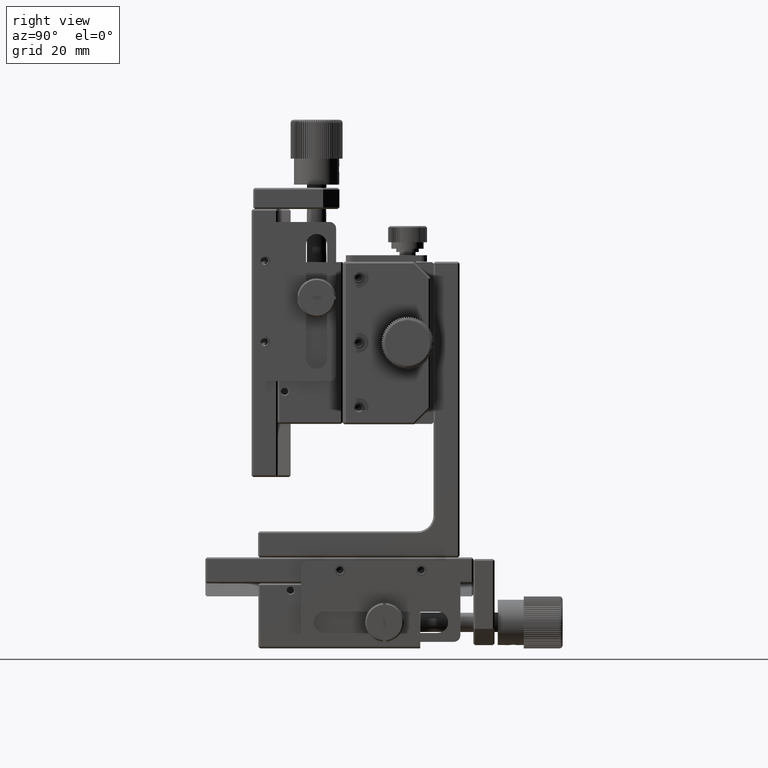
[diagram: clean part render]
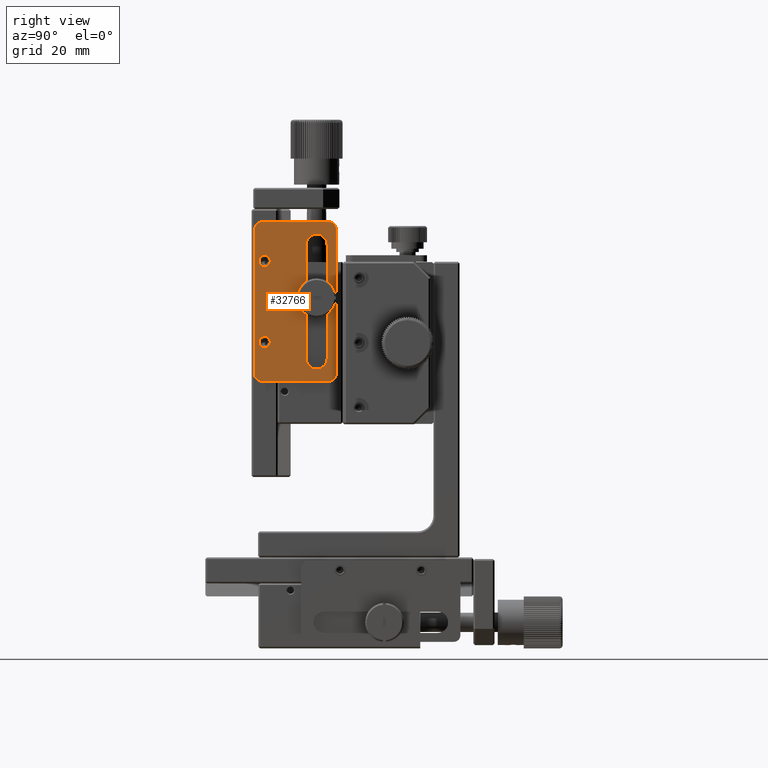
[diagram: same view with one face highlighted and labeled with its STEP entity id]
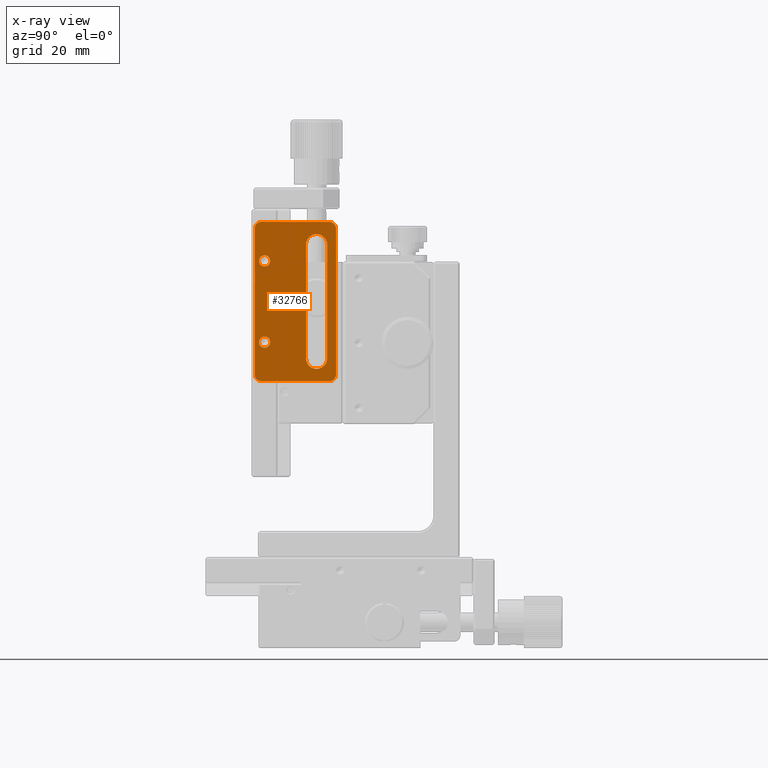
[diagram: x-ray of the same camera — body ghosted, the highlighted face saturated]
A machine part, right view. The second image highlights one B-rep face of the part: STEP entity #32766.
The next image is the same camera in x-ray: the body ghosted, the highlighted face saturated — about 0% of this face is hidden behind the body in this view.
In plain terms, the highlighted planar face has unit normal (1, 0, 0).
Its self-contained STEP definition (entity closure, byte-faithful):
#516 = AXIS2_PLACEMENT_3D ( 'NONE', #23458, #43034, #12449 ) ;
#561 = DIRECTION ( 'NONE',  ( 0.000000000000000000, 0.000000000000000000, 1.000000000000000000 ) ) ;
#580 = PLANE ( 'NONE',  #19412 ) ;
#676 = VERTEX_POINT ( 'NONE', #67835 ) ;
#733 = ORIENTED_EDGE ( 'NONE', *, *, #15411, .T. ) ;
#1365 = CARTESIAN_POINT ( 'NONE',  ( 27.00000000000000000, 24.00000000000000000, 76.50000000000000000 ) ) ;
#3001 = EDGE_CURVE ( 'NONE', #72055, #47628, #47991, .T. ) ;
#3218 = VERTEX_POINT ( 'NONE', #47504 ) ;
#3309 = CARTESIAN_POINT ( 'NONE',  ( 27.00000000000000000, 4.000000000000000000, 68.25000000000000000 ) ) ;
#3929 = VECTOR ( 'NONE', #19475, 1000.000000000000000 ) ;
#4379 = CIRCLE ( 'NONE', #516, 1.750000000000001554 ) ;
#5336 = DIRECTION ( 'NONE',  ( -1.000000000000000000, 0.000000000000000000, 0.000000000000000000 ) ) ;
#5987 = VERTEX_POINT ( 'NONE', #62053 ) ;
#6050 = VERTEX_POINT ( 'NONE', #28450 ) ;
#6694 = VERTEX_POINT ( 'NONE', #27029 ) ;
#6852 = CARTESIAN_POINT ( 'NONE',  ( 27.00000000000000000, 25.99999999999999645, 31.50000000000000000 ) ) ;
#7054 = CARTESIAN_POINT ( 'NONE',  ( 27.00000000000000000, 3.000000000000010658, 76.50000000000000000 ) ) ;
#7871 = FACE_BOUND ( 'NONE', #59444, .T. ) ;
#8070 = AXIS2_PLACEMENT_3D ( 'NONE', #61189, #5336, #73011 ) ;
#8596 = CARTESIAN_POINT ( 'NONE',  ( 27.00000000000000000, 20.00000000000000000, 36.50000000000000000 ) ) ;
#9015 = VERTEX_POINT ( 'NONE', #78975 ) ;
#10330 = CARTESIAN_POINT ( 'NONE',  ( 27.00000000000000000, 2.999999999999989786, 31.50000000000000000 ) ) ;
#10633 = VERTEX_POINT ( 'NONE', #3309 ) ;
#10892 = DIRECTION ( 'NONE',  ( -0.000000000000000000, 1.000000000000000000, 0.000000000000000000 ) ) ;
#11232 = DIRECTION ( 'NONE',  ( 0.000000000000000000, 0.000000000000000000, 1.000000000000000000 ) ) ;
#12449 = DIRECTION ( 'NONE',  ( 0.000000000000000000, 0.000000000000000000, 1.000000000000000000 ) ) ;
#13714 = VERTEX_POINT ( 'NONE', #18109 ) ;
#14222 = ORIENTED_EDGE ( 'NONE', *, *, #76386, .T. ) ;
#14744 = DIRECTION ( 'NONE',  ( -1.000000000000000000, 0.000000000000000000, 0.000000000000000000 ) ) ;
#14877 = LINE ( 'NONE', #77220, #24956 ) ;
#15411 = EDGE_CURVE ( 'NONE', #6694, #13714, #24751, .T. ) ;
#15877 = CIRCLE ( 'NONE', #75746, 2.000000000000001776 ) ;
#17668 = DIRECTION ( 'NONE',  ( -1.000000000000000000, 0.000000000000000000, 0.000000000000000000 ) ) ;
#18109 = CARTESIAN_POINT ( 'NONE',  ( 27.00000000000000000, 16.75000000000000000, 36.50000000000000000 ) ) ;
#18989 = EDGE_LOOP ( 'NONE', ( #31340 ) ) ;
#19152 = EDGE_CURVE ( 'NONE', #9015, #42327, #65836, .T. ) ;
#19412 = AXIS2_PLACEMENT_3D ( 'NONE', #1365, #32347, #69029 ) ;
#19475 = DIRECTION ( 'NONE',  ( -0.000000000000000000, -0.000000000000000000, 1.000000000000000000 ) ) ;
#19593 = LINE ( 'NONE', #44476, #58180 ) ;
#19712 = FACE_OUTER_BOUND ( 'NONE', #50510, .T. ) ;
#19799 = CARTESIAN_POINT ( 'NONE',  ( 27.00000000000000000, 1.000000000000000000, 76.50000000000000000 ) ) ;
#21617 = ORIENTED_EDGE ( 'NONE', *, *, #3001, .F. ) ;
#23458 = CARTESIAN_POINT ( 'NONE',  ( 27.00000000000000000, 4.000000000000000000, 41.50000000000000000 ) ) ;
#24373 = CARTESIAN_POINT ( 'NONE',  ( 27.00000000000000000, 16.75000000000000000, 76.50000000000000000 ) ) ;
#24751 = CIRCLE ( 'NONE', #56020, 3.250000000000002665 ) ;
#24956 = VECTOR ( 'NONE', #75602, 1000.000000000000000 ) ;
#25016 = CIRCLE ( 'NONE', #73117, 2.000000000000001776 ) ;
#25026 = FACE_BOUND ( 'NONE', #35868, .T. ) ;
#25968 = EDGE_CURVE ( 'NONE', #3218, #6694, #19593, .T. ) ;
#27029 = CARTESIAN_POINT ( 'NONE',  ( 27.00000000000000000, 23.25000000000000000, 36.50000000000000000 ) ) ;
#27102 = LINE ( 'NONE', #40144, #32994 ) ;
#28450 = CARTESIAN_POINT ( 'NONE',  ( 27.00000000000000000, 16.75000000000000000, 71.50000000000001421 ) ) ;
#28649 = ORIENTED_EDGE ( 'NONE', *, *, #79881, .T. ) ;
#29239 = LINE ( 'NONE', #71608, #68047 ) ;
#30844 = DIRECTION ( 'NONE',  ( 0.000000000000000000, 0.000000000000000000, 1.000000000000000000 ) ) ;
#31259 = CARTESIAN_POINT ( 'NONE',  ( 27.00000000000000000, 24.00000000000000000, 31.50000000000000000 ) ) ;
#31340 = ORIENTED_EDGE ( 'NONE', *, *, #40391, .T. ) ;
#32331 = CARTESIAN_POINT ( 'NONE',  ( 27.00000000000000000, 24.00000000000000000, 29.50000000000000355 ) ) ;
#32347 = DIRECTION ( 'NONE',  ( 1.000000000000000000, 0.000000000000000000, 0.000000000000000000 ) ) ;
#32367 = VERTEX_POINT ( 'NONE', #19799 ) ;
#32766 = ADVANCED_FACE ( 'NONE', ( #19712, #7871, #44597, #25026 ), #580, .T. ) ;
#32994 = VECTOR ( 'NONE', #47455, 1000.000000000000000 ) ;
#33049 = DIRECTION ( 'NONE',  ( 0.000000000000000000, 0.000000000000000000, -1.000000000000000000 ) ) ;
#35011 = DIRECTION ( 'NONE',  ( 0.000000000000000000, 0.000000000000000000, 1.000000000000000000 ) ) ;
#35416 = DIRECTION ( 'NONE',  ( -1.000000000000000000, 0.000000000000000000, 0.000000000000000000 ) ) ;
#35619 = DIRECTION ( 'NONE',  ( 0.000000000000000000, 0.000000000000000000, 1.000000000000000000 ) ) ;
#35868 = EDGE_LOOP ( 'NONE', ( #69698, #49691, #37282, #733 ) ) ;
#36709 = ORIENTED_EDGE ( 'NONE', *, *, #19152, .T. ) ;
#37165 = AXIS2_PLACEMENT_3D ( 'NONE', #10330, #17668, #35619 ) ;
#37282 = ORIENTED_EDGE ( 'NONE', *, *, #25968, .T. ) ;
#37317 = VERTEX_POINT ( 'NONE', #62168 ) ;
#37462 = EDGE_CURVE ( 'NONE', #676, #47628, #29239, .T. ) ;
#37527 = VECTOR ( 'NONE', #47509, 1000.000000000000000 ) ;
#40144 = CARTESIAN_POINT ( 'NONE',  ( 27.00000000000000000, 26.00000000000000355, 76.50000000000000000 ) ) ;
#40148 = EDGE_CURVE ( 'NONE', #32367, #42327, #25016, .T. ) ;
#40391 = EDGE_CURVE ( 'NONE', #10633, #10633, #58829, .T. ) ;
#40978 = ORIENTED_EDGE ( 'NONE', *, *, #37462, .T. ) ;
#42221 = CARTESIAN_POINT ( 'NONE',  ( 27.00000000000000000, 24.00000000000000000, 76.50000000000000000 ) ) ;
#42327 = VERTEX_POINT ( 'NONE', #46760 ) ;
#43034 = DIRECTION ( 'NONE',  ( -1.000000000000000000, 0.000000000000000000, 0.000000000000000000 ) ) ;
#43759 = DIRECTION ( 'NONE',  ( -1.000000000000000000, 0.000000000000000000, 0.000000000000000000 ) ) ;
#44476 = CARTESIAN_POINT ( 'NONE',  ( 27.00000000000000000, 23.25000000000000000, 76.50000000000000000 ) ) ;
#44521 = EDGE_CURVE ( 'NONE', #6050, #3218, #61828, .T. ) ;
#44597 = FACE_BOUND ( 'NONE', #18989, .T. ) ;
#46760 = CARTESIAN_POINT ( 'NONE',  ( 27.00000000000000000, 3.000000000000010658, 78.50000000000000000 ) ) ;
#47455 = DIRECTION ( 'NONE',  ( -0.000000000000000000, -0.000000000000000000, 1.000000000000000000 ) ) ;
#47504 = CARTESIAN_POINT ( 'NONE',  ( 27.00000000000000000, 23.25000000000000000, 71.50000000000001421 ) ) ;
#47509 = DIRECTION ( 'NONE',  ( -0.000000000000000000, -1.000000000000000000, -0.000000000000000000 ) ) ;
#47628 = VERTEX_POINT ( 'NONE', #32331 ) ;
#47991 = CIRCLE ( 'NONE', #64928, 1.999999999999988010 ) ;
#48842 = AXIS2_PLACEMENT_3D ( 'NONE', #54557, #35416, #35011 ) ;
#49103 = VERTEX_POINT ( 'NONE', #70920 ) ;
#49691 = ORIENTED_EDGE ( 'NONE', *, *, #44521, .T. ) ;
#50510 = EDGE_LOOP ( 'NONE', ( #21617, #14222, #60631, #36709, #56954, #57135, #57050, #40978 ) ) ;
#54557 = CARTESIAN_POINT ( 'NONE',  ( 27.00000000000000000, 20.00000000000000000, 71.50000000000001421 ) ) ;
#56020 = AXIS2_PLACEMENT_3D ( 'NONE', #8596, #14744, #57939 ) ;
#56954 = ORIENTED_EDGE ( 'NONE', *, *, #40148, .F. ) ;
#57050 = ORIENTED_EDGE ( 'NONE', *, *, #62426, .F. ) ;
#57135 = ORIENTED_EDGE ( 'NONE', *, *, #75048, .T. ) ;
#57939 = DIRECTION ( 'NONE',  ( 0.000000000000000000, 0.000000000000000000, 1.000000000000000000 ) ) ;
#58180 = VECTOR ( 'NONE', #33049, 1000.000000000000000 ) ;
#58829 = CIRCLE ( 'NONE', #8070, 1.750000000000001554 ) ;
#59444 = EDGE_LOOP ( 'NONE', ( #28649 ) ) ;
#60631 = ORIENTED_EDGE ( 'NONE', *, *, #73886, .T. ) ;
#61189 = CARTESIAN_POINT ( 'NONE',  ( 27.00000000000000000, 4.000000000000000000, 66.50000000000000000 ) ) ;
#61444 = DIRECTION ( 'NONE',  ( -1.000000000000000000, 0.000000000000000000, 0.000000000000000000 ) ) ;
#61828 = CIRCLE ( 'NONE', #48842, 3.250000000000002665 ) ;
#62053 = CARTESIAN_POINT ( 'NONE',  ( 27.00000000000000000, 26.00000000000000355, 76.50000000000000000 ) ) ;
#62168 = CARTESIAN_POINT ( 'NONE',  ( 27.00000000000000000, 4.000000000000000000, 43.25000000000000711 ) ) ;
#62426 = EDGE_CURVE ( 'NONE', #676, #49103, #65759, .T. ) ;
#64928 = AXIS2_PLACEMENT_3D ( 'NONE', #31259, #61444, #30844 ) ;
#65759 = CIRCLE ( 'NONE', #37165, 1.999999999999988010 ) ;
#65836 = LINE ( 'NONE', #78495, #37527 ) ;
#67068 = DIRECTION ( 'NONE',  ( 1.000000000000000000, -0.000000000000000000, -0.000000000000000000 ) ) ;
#67835 = CARTESIAN_POINT ( 'NONE',  ( 27.00000000000000000, 2.999999999999994671, 29.50000000000000355 ) ) ;
#68047 = VECTOR ( 'NONE', #10892, 1000.000000000000000 ) ;
#69029 = DIRECTION ( 'NONE',  ( 0.000000000000000000, 0.000000000000000000, -1.000000000000000000 ) ) ;
#69698 = ORIENTED_EDGE ( 'NONE', *, *, #72000, .T. ) ;
#70920 = CARTESIAN_POINT ( 'NONE',  ( 27.00000000000000000, 0.9999999999999997780, 31.50000000000000000 ) ) ;
#71608 = CARTESIAN_POINT ( 'NONE',  ( 27.00000000000000000, 3.000000000000000000, 29.50000000000000355 ) ) ;
#72000 = EDGE_CURVE ( 'NONE', #13714, #6050, #74528, .T. ) ;
#72055 = VERTEX_POINT ( 'NONE', #6852 ) ;
#73011 = DIRECTION ( 'NONE',  ( 0.000000000000000000, 0.000000000000000000, 1.000000000000000000 ) ) ;
#73117 = AXIS2_PLACEMENT_3D ( 'NONE', #7054, #43759, #561 ) ;
#73886 = EDGE_CURVE ( 'NONE', #5987, #9015, #15877, .T. ) ;
#74528 = LINE ( 'NONE', #24373, #3929 ) ;
#75048 = EDGE_CURVE ( 'NONE', #32367, #49103, #14877, .T. ) ;
#75602 = DIRECTION ( 'NONE',  ( -0.000000000000000000, 0.000000000000000000, -1.000000000000000000 ) ) ;
#75746 = AXIS2_PLACEMENT_3D ( 'NONE', #42221, #67068, #11232 ) ;
#76386 = EDGE_CURVE ( 'NONE', #72055, #5987, #27102, .T. ) ;
#77220 = CARTESIAN_POINT ( 'NONE',  ( 27.00000000000000000, 1.000000000000000000, 76.50000000000000000 ) ) ;
#78495 = CARTESIAN_POINT ( 'NONE',  ( 27.00000000000000000, 24.00000000000000000, 78.50000000000000000 ) ) ;
#78975 = CARTESIAN_POINT ( 'NONE',  ( 27.00000000000000000, 24.00000000000000000, 78.50000000000000000 ) ) ;
#79881 = EDGE_CURVE ( 'NONE', #37317, #37317, #4379, .T. ) ;